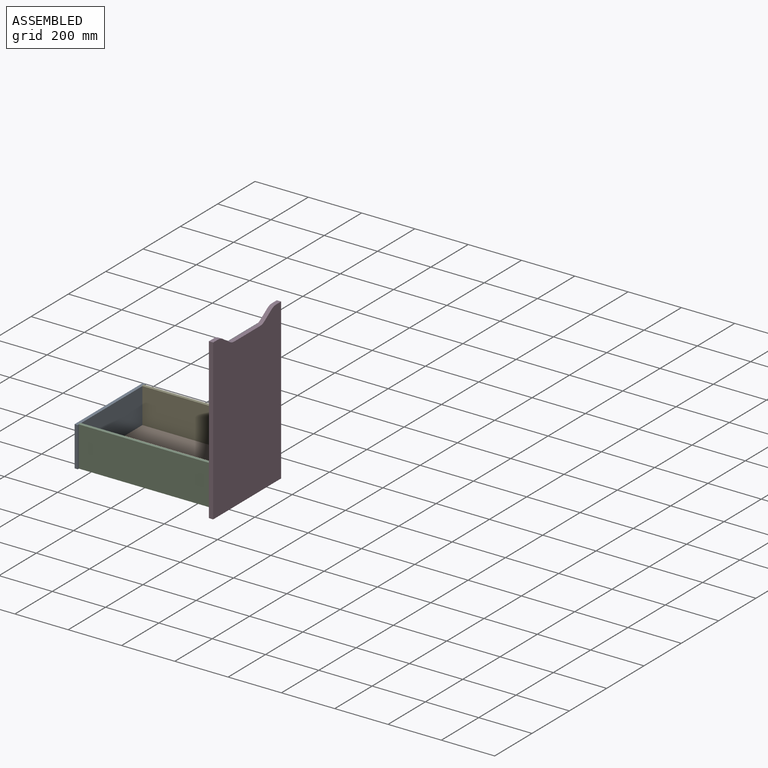
[diagram: assembled view]
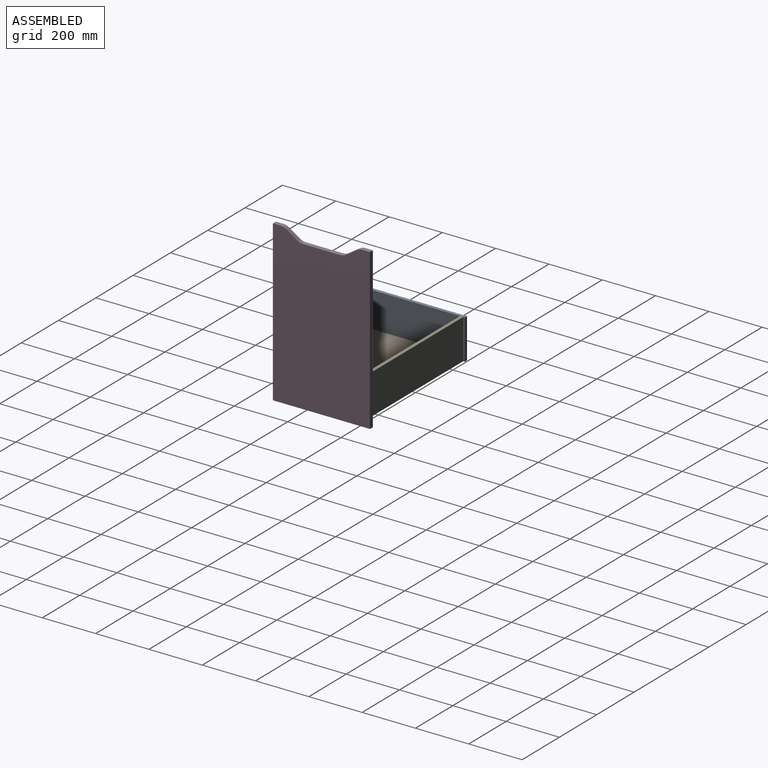
[diagram: assembled view, second angle]
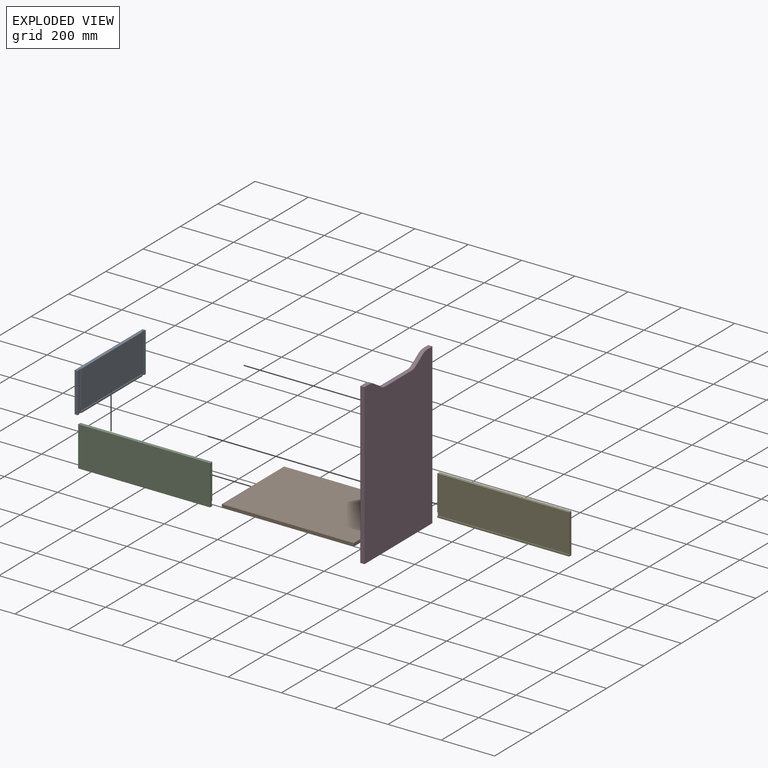
[diagram: exploded view]
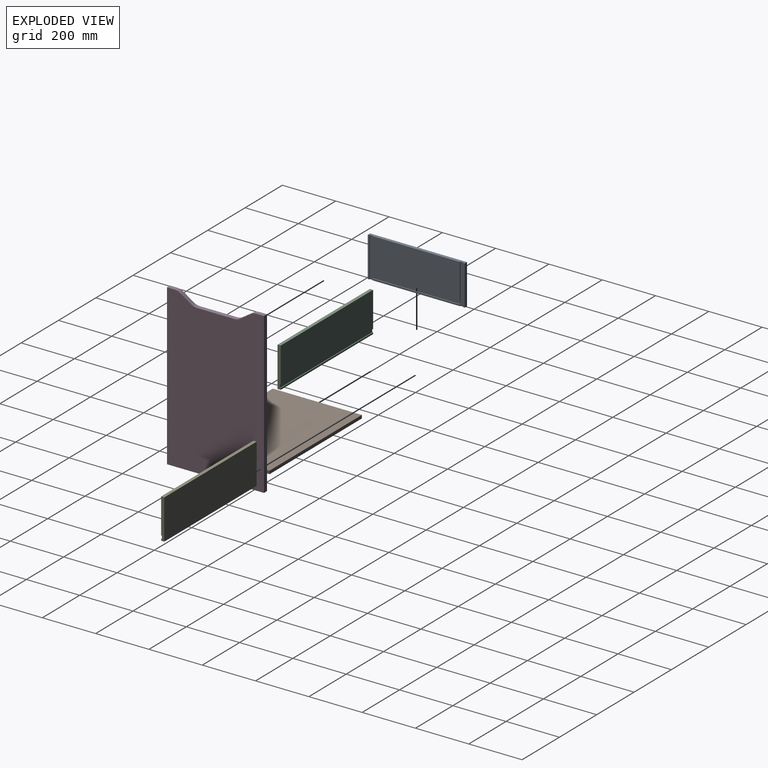
[diagram: exploded view, second angle]
ASSEMBLY  parts=5 mates=4
PART A: 18 faces, bbox 12x364x150 mm
  f0: plane 364x12mm, normal (0,0,1), area 4296mm2, adj f2,f3,f4,f6,f7,f8,f9,f13
  f1: plane 328x6mm, normal (1,0,0), area 1968mm2, adj f5,f10,f11,f12
  f2: plane 150x6mm, normal (1,0,0), area 900mm2, adj f0,f5,f6,f13
  f3: plane 150x6mm, normal (1,0,0), area 900mm2, adj f0,f4,f5,f9
  f4: plane 150x12mm, normal (0,-1,0), area 1800mm2, adj f0,f3,f5,f8
  f5: plane 364x12mm, normal (0,0,-1), area 4296mm2, adj f1,f2,f3,f4,f6,f8,f9,f10
  f6: plane 150x12mm, normal (0,1,0), area 1800mm2, adj f0,f2,f5,f8
  f7: plane 328x132mm, normal (1,0,0), area 43296mm2, adj f0,f14,f15,f16
  f8: plane 364x150mm, normal (-1,0,0), area 54600mm2, adj f0,f4,f5,f6
  f9: plane 150x3mm, normal (0,1,0), area 450mm2, adj f0,f3,f5,f17
  f10: plane 6x3mm, normal (0,-1,0), area 18mm2, adj f1,f5,f11,f17
  f11: plane 328x3mm, normal (0,0,1), area 984mm2, adj f1,f10,f12,f17
  f12: plane 6x3mm, normal (0,1,0), area 18mm2, adj f1,f5,f11,f17
  f13: plane 150x3mm, normal (0,-1,0), area 450mm2, adj f0,f2,f5,f17
  f14: plane 132x3mm, normal (0,1,0), area 396mm2, adj f0,f7,f15,f17
  f15: plane 328x3mm, normal (0,0,-1), area 984mm2, adj f7,f14,f16,f17
  f16: plane 132x3mm, normal (0,-1,0), area 396mm2, adj f0,f7,f15,f17
  f17: plane 352x150mm, normal (1,0,0), area 7536mm2, adj f0,f5,f9,f10,f11,f12,f13,f14
PART B: 6 faces, bbox 12x495x334 mm
  f0: plane 495x12mm, normal (0,0,1), area 5940mm2, adj f1,f3,f4,f5
  f1: plane 334x12mm, normal (0,-1,0), area 4008mm2, adj f0,f2,f4,f5
  f2: plane 495x12mm, normal (0,0,-1), area 5940mm2, adj f1,f3,f4,f5
  f3: plane 334x12mm, normal (0,1,0), area 4008mm2, adj f0,f2,f4,f5
  f4: plane 495x334mm, normal (1,0,0), area 165330mm2, adj f0,f1,f2,f3
  f5: plane 495x334mm, normal (-1,0,0), area 165330mm2, adj f0,f1,f2,f3
PART C: 10 faces, bbox 12x495x150 mm
  f0: plane 495x6mm, normal (1,0,0), area 2970mm2, adj f1,f3,f4,f7
  f1: plane 150x12mm, normal (0,1,0), area 1764mm2, adj f0,f2,f4,f5,f6,f7,f8,f9
  f2: plane 495x12mm, normal (0,0,1), area 5940mm2, adj f1,f3,f5,f6
  f3: plane 150x12mm, normal (0,-1,0), area 1764mm2, adj f0,f2,f4,f5,f6,f7,f8,f9
  f4: plane 495x12mm, normal (0,0,-1), area 5940mm2, adj f0,f1,f3,f6
  f5: plane 495x132mm, normal (1,0,0), area 65340mm2, adj f1,f2,f3,f8
  f6: plane 495x150mm, normal (-1,0,0), area 74250mm2, adj f1,f2,f3,f4
  f7: plane 495x3mm, normal (0,0,1), area 1485mm2, adj f0,f1,f3,f9
  f8: plane 495x3mm, normal (0,0,-1), area 1485mm2, adj f1,f3,f5,f9
  f9: plane 495x12mm, normal (1,0,0), area 5940mm2, adj f1,f3,f7,f8
PART D: 31 faces, bbox 16x364x600 mm
  f0: plane 600x364mm, normal (-1,0,0), area 201803.5mm2, adj f1,f2,f3,f4,f5,f6,f7,f8
  f1: plane 39.85x26.56mm, normal (0,0.55,0.83), area 766.2mm2, adj f0,f2,f12,f13
  f2: cylinder r=40mm len=22.19mm, axis (-1,0,0), area 376.3mm2, adj f0,f1,f3,f13
  f3: plane 27.89x16mm, normal (0,0,1), area 446.2mm2, adj f0,f2,f4,f13
  f4: plane 600x16mm, normal (0,-1,0), area 9600mm2, adj f0,f3,f5,f13
  f5: plane 364x16mm, normal (0,0,-1), area 5824mm2, adj f0,f4,f6,f13
  f6: plane 600x16mm, normal (0,1,0), area 9600mm2, adj f0,f5,f7,f13
  f7: plane 27.89x16mm, normal (0,0,1), area 446.2mm2, adj f0,f6,f8,f13
  f8: cylinder r=40mm len=22.19mm, axis (-1,0,0), area 376.3mm2, adj f0,f7,f9,f13
  f9: plane 39.85x26.56mm, normal (0,-0.55,0.83), area 766.2mm2, adj f0,f8,f10,f13
  f10: cylinder r=40mm len=22.19mm, axis (-1,0,0), area 376.3mm2, adj f0,f9,f11,f13
  f11: plane 139.78x16mm, normal (0,0,1), area 2236.4mm2, adj f0,f10,f12,f13
  f12: cylinder r=40mm len=22.19mm, axis (-1,0,0), area 376.3mm2, adj f0,f1,f11,f13
  f13: plane 600x364mm, normal (1,0,0), area 209440mm2, adj f1,f2,f3,f4,f5,f6,f7,f8
  f14: cylinder r=4mm len=8mm, axis (-1,0,0), area 125.7mm2, adj f0,f15
  f15: plane 8x8mm, normal (-1,0,0), area 50.3mm2, adj f14
  f16: cylinder r=4mm len=8mm, axis (-1,0,0), area 125.7mm2, adj f0,f17
  f17: plane 8x8mm, normal (-1,0,0), area 50.3mm2, adj f16
  f18: plane 132x5mm, normal (0,-1,0), area 660mm2, adj f0,f19,f29,f30
  f19: plane 328x5mm, normal (0,0,-1), area 1640mm2, adj f0,f18,f20,f30
  f20: plane 132x5mm, normal (0,1,0), area 660mm2, adj f0,f19,f21,f30
  f21: plane 12x5mm, normal (0,0,-1), area 60mm2, adj f0,f20,f22,f30
  f22: plane 150x5mm, normal (0,-1,0), area 750mm2, adj f0,f21,f23,f30
  f23: plane 12x5mm, normal (0,0,1), area 60mm2, adj f0,f22,f24,f30
  f24: plane 6x5mm, normal (0,1,0), area 30mm2, adj f0,f23,f25,f30
  f25: plane 328x5mm, normal (0,0,1), area 1640mm2, adj f0,f24,f26,f30
  f26: plane 6x5mm, normal (0,-1,0), area 30mm2, adj f0,f25,f27,f30
  f27: plane 12x5mm, normal (0,0,1), area 60mm2, adj f0,f26,f28,f30
  f28: plane 150x5mm, normal (0,1,0), area 750mm2, adj f0,f27,f29,f30
  f29: plane 12x5mm, normal (0,0,-1), area 60mm2, adj f0,f18,f28,f30
  f30: plane 352x150mm, normal (-1,0,0), area 7536mm2, adj f18,f19,f20,f21,f22,f23,f24,f25
PART E: same geometry as C
PLACE A t=(-598.98,5.35,112.91)mm
PLACE B rot(axis=(-0.58,0.58,0.58),120deg) t=(-488.69,-231.48,79.3)mm
PLACE C rot(axis=(0,0,1),90deg) t=(-466.99,-304.41,72.74)mm
PLACE D t=(-94.98,-54.65,101.55)mm
PLACE E rot(axis=(0,0,-1),90deg) t=(-217.98,47.59,72.74)mm
MATE fastened B.f3 <-> C.f1  axis (-1,0,0) through (-589.98,-295.41,79.3)mm
MATE fastened A.f5 <-> E.f4  axis (0,0,-1) through (-589.98,47.59,61.3)mm
MATE fastened C.f3 <-> D.f0  axis (1,0,0) through (-94.98,-304.41,211.3)mm
MATE fastened E.f1 <-> D.f0  axis (1,0,0) through (-94.98,35.59,211.3)mm
